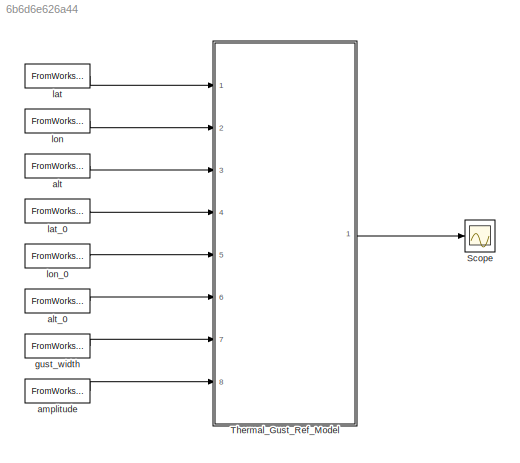
MODEL slx_6b6d6e626a44
KIND model
BLOCK [Scope] Scope
  Floating = off
  NumInputPorts = 1
  Ports = [1]
  ScopeSpecificationString = Simulink.scopes.TimeScopeBlockCfg('CurrentConfiguration', extmgr.ConfigurationSet(extmgr.Configuration('Core','General UI',true),extmgr.Configuration('Core','Source UI',true),extmgr.Configuration('Sources','WiredSimulink',true),extmgr.Configuration('Visuals','Time Domain',true,'SerializedDisplays',{struct('MinYLimReal','-1.00000','MaxYLimReal','1.00000','YLabelReal','','MinYLimMag','0.00000','MaxY...<+1325ch>
BLOCK [ModelReference] Thermal_Gust_Ref_Model
  ModelNameDialog = model_thermal_gust.slx
  ModelReferenceVersion = 1.24
  Ports = [8, 1]
BLOCK [FromWorkspace] alt
  VariableName = alt
BLOCK [FromWorkspace] alt_0
  VariableName = alt_0
BLOCK [FromWorkspace] amplitude
  VariableName = amplitude
BLOCK [FromWorkspace] gust_width
  VariableName = gust_radius
BLOCK [FromWorkspace] lat
  VariableName = lat
BLOCK [FromWorkspace] lat_0
  VariableName = lat_0
BLOCK [FromWorkspace] lon
  VariableName = lon
BLOCK [FromWorkspace] lon_0
  VariableName = lon_0
LINE Thermal_Gust_Ref_Model:1 -> Scope:1
LINE alt:1 -> Thermal_Gust_Ref_Model:3
LINE alt_0:1 -> Thermal_Gust_Ref_Model:6
LINE amplitude:1 -> Thermal_Gust_Ref_Model:8
LINE gust_width:1 -> Thermal_Gust_Ref_Model:7
LINE lat:1 -> Thermal_Gust_Ref_Model:1
LINE lat_0:1 -> Thermal_Gust_Ref_Model:4
LINE lon:1 -> Thermal_Gust_Ref_Model:2
LINE lon_0:1 -> Thermal_Gust_Ref_Model:5
